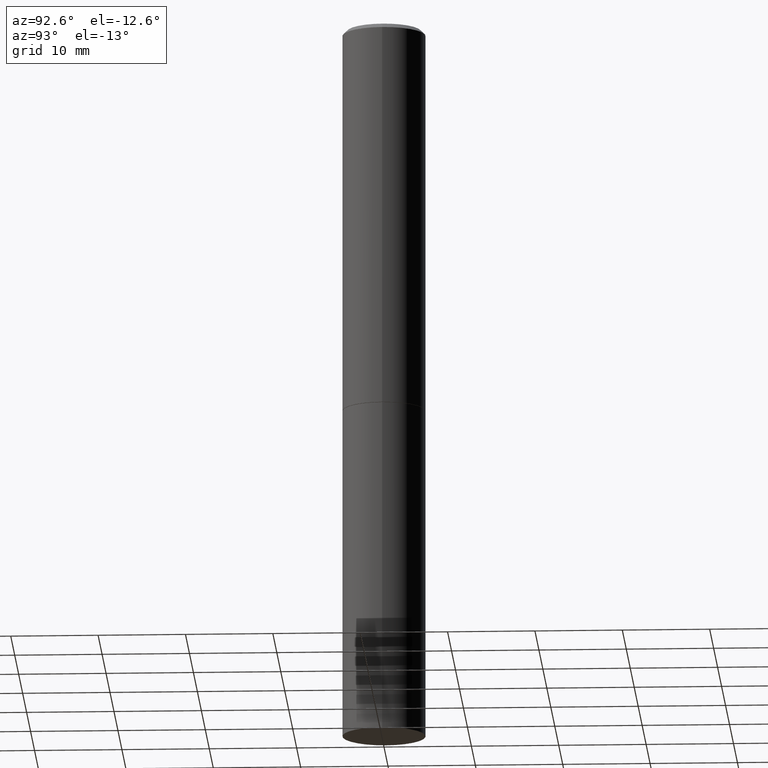
[diagram: clean part render]
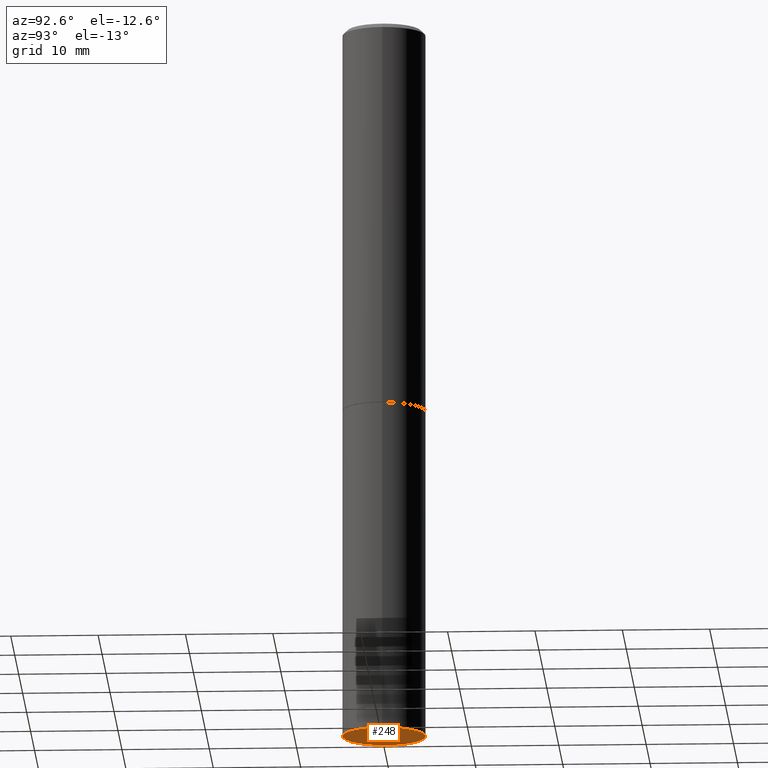
[diagram: same view with one face highlighted and labeled with its STEP entity id]
A machine part, auxiliary view. The second image highlights one B-rep face of the part: STEP entity #248.
In plain terms, the highlighted planar face has unit normal (0, -0, -1).
Its self-contained STEP definition (entity closure, byte-faithful):
#32 = DIRECTION ( 'NONE',  ( 1.000000000000000000, -6.982962677686261189E-15, 0.000000000000000000 ) ) ;
#38 = ORIENTED_EDGE ( 'NONE', *, *, #273, .F. ) ;
#63 = DIRECTION ( 'NONE',  ( 1.000000000000000000, -6.982962677686261189E-15, 0.000000000000000000 ) ) ;
#83 = FACE_OUTER_BOUND ( 'NONE', #134, .T. ) ;
#112 = CARTESIAN_POINT ( 'NONE',  ( -0.1875000000000000278, -7.396435717557677094E-15, -3.250000000000000000 ) ) ;
#134 = EDGE_LOOP ( 'NONE', ( #154, #38 ) ) ;
#147 = CARTESIAN_POINT ( 'NONE',  ( 7.947773620101693940E-29, -1.134731435124022443E-14, -3.250000000000000000 ) ) ;
#154 = ORIENTED_EDGE ( 'NONE', *, *, #284, .F. ) ;
#171 = DIRECTION ( 'NONE',  ( 2.438088387897960049E-29, -3.491481338843145188E-15, -1.000000000000000000 ) ) ;
#200 = CIRCLE ( 'NONE', #260, 0.1875000000000000278 ) ;
#201 = VERTEX_POINT ( 'NONE', #112 ) ;
#203 = DIRECTION ( 'NONE',  ( -2.445468806185136597E-29, 3.491481338843145583E-15, 1.000000000000000000 ) ) ;
#236 = AXIS2_PLACEMENT_3D ( 'NONE', #312, #171, #288 ) ;
#243 = VERTEX_POINT ( 'NONE', #366 ) ;
#248 = ADVANCED_FACE ( 'NONE', ( #83 ), #291, .T. ) ;
#259 = DIRECTION ( 'NONE',  ( -2.445468806185136597E-29, 3.491481338843145583E-15, 1.000000000000000000 ) ) ;
#260 = AXIS2_PLACEMENT_3D ( 'NONE', #341, #203, #63 ) ;
#273 = EDGE_CURVE ( 'NONE', #201, #243, #200, .T. ) ;
#274 = CIRCLE ( 'NONE', #338, 0.1875000000000000278 ) ;
#284 = EDGE_CURVE ( 'NONE', #243, #201, #274, .T. ) ;
#288 = DIRECTION ( 'NONE',  ( -1.000000000000000000, 6.982962677686265922E-15, -4.876176775795935793E-29 ) ) ;
#291 = PLANE ( 'NONE',  #236 ) ;
#312 = CARTESIAN_POINT ( 'NONE',  ( 1.309305502066254683E-15, 0.1874999999999886757, -3.250000000000000444 ) ) ;
#338 = AXIS2_PLACEMENT_3D ( 'NONE', #147, #259, #32 ) ;
#341 = CARTESIAN_POINT ( 'NONE',  ( 7.947773620101693940E-29, -1.134731435124022443E-14, -3.250000000000000000 ) ) ;
#366 = CARTESIAN_POINT ( 'NONE',  ( 0.1875000000000000278, -1.265661985330639786E-14, -3.250000000000000000 ) ) ;